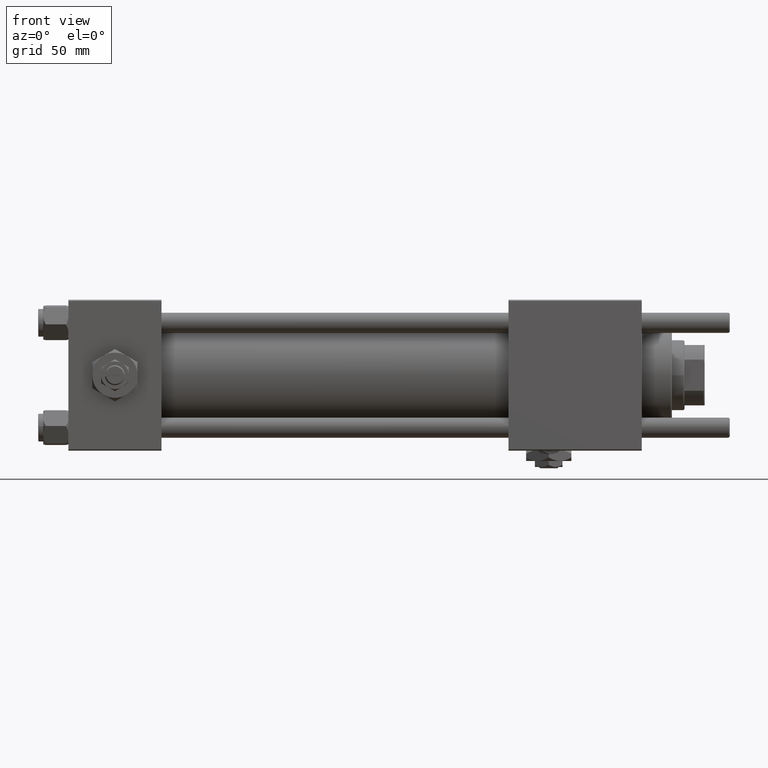
[diagram: clean part render]
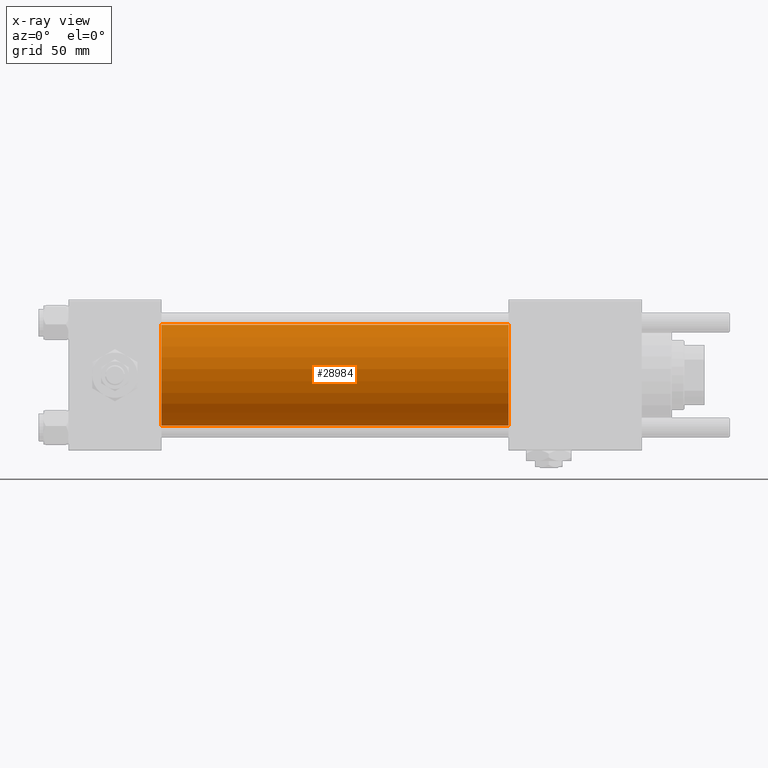
[diagram: x-ray — body ghosted, one internal face saturated and labeled with its STEP entity id]
A machine part, front view, then the same camera in x-ray: the body is ghosted and one INTERNAL B-rep face — a face not visible from any outside direction — is saturated and labeled: STEP entity #28984.
In plain terms, the highlighted cylindrical surface (partial cylindrical patch) has radius 20 mm, axis along (-1, -0, -0).
Its self-contained STEP definition (entity closure, byte-faithful):
#3 = DIRECTION ( 'NONE',  ( 1.000000000000000000, 0.000000000000000000, 0.000000000000000000 ) ) ;
#1179 = VERTEX_POINT ( 'NONE', #18407 ) ;
#1770 = DIRECTION ( 'NONE',  ( 0.000000000000000000, 0.000000000000000000, -1.000000000000000000 ) ) ;
#1987 = LINE ( 'NONE', #11234, #51168 ) ;
#2159 = CYLINDRICAL_SURFACE ( 'NONE', #21843, 20.00000000000000000 ) ;
#3428 = VERTEX_POINT ( 'NONE', #29216 ) ;
#5325 = EDGE_LOOP ( 'NONE', ( #20348, #6050, #7755, #23019 ) ) ;
#5484 = VERTEX_POINT ( 'NONE', #34004 ) ;
#6050 = ORIENTED_EDGE ( 'NONE', *, *, #36006, .T. ) ;
#7671 = CARTESIAN_POINT ( 'NONE',  ( 37.00000000000000000, -2.602085213965210642E-15, 20.00000000000000000 ) ) ;
#7755 = ORIENTED_EDGE ( 'NONE', *, *, #24812, .F. ) ;
#11234 = CARTESIAN_POINT ( 'NONE',  ( 175.0000000000000284, -2.602085213965210642E-15, 20.00000000000000000 ) ) ;
#13330 = LINE ( 'NONE', #41665, #45904 ) ;
#18407 = CARTESIAN_POINT ( 'NONE',  ( 175.0000000000000284, -1.527916156705042519E-16, -20.00000000000000000 ) ) ;
#20348 = ORIENTED_EDGE ( 'NONE', *, *, #55907, .T. ) ;
#21843 = AXIS2_PLACEMENT_3D ( 'NONE', #47227, #42762, #24857 ) ;
#23019 = ORIENTED_EDGE ( 'NONE', *, *, #51475, .F. ) ;
#24812 = EDGE_CURVE ( 'NONE', #46955, #3428, #25516, .T. ) ;
#24857 = DIRECTION ( 'NONE',  ( 0.000000000000000000, 0.000000000000000000, 1.000000000000000000 ) ) ;
#25516 = CIRCLE ( 'NONE', #30296, 20.00000000000000000 ) ;
#27508 = CIRCLE ( 'NONE', #57013, 20.00000000000000000 ) ;
#28984 = ADVANCED_FACE ( 'NONE', ( #51986 ), #2159, .F. ) ;
#29216 = CARTESIAN_POINT ( 'NONE',  ( 37.00000000000000000, -1.527916156705042519E-16, -20.00000000000000000 ) ) ;
#29452 = DIRECTION ( 'NONE',  ( -1.000000000000000000, -0.000000000000000000, -0.000000000000000000 ) ) ;
#30296 = AXIS2_PLACEMENT_3D ( 'NONE', #37599, #56098, #1770 ) ;
#31655 = CARTESIAN_POINT ( 'NONE',  ( 175.0000000000000284, -2.602085213965210642E-15, 0.000000000000000000 ) ) ;
#31832 = DIRECTION ( 'NONE',  ( -1.000000000000000000, -0.000000000000000000, -0.000000000000000000 ) ) ;
#34004 = CARTESIAN_POINT ( 'NONE',  ( 175.0000000000000284, -2.602085213965210642E-15, 20.00000000000000000 ) ) ;
#36006 = EDGE_CURVE ( 'NONE', #1179, #3428, #13330, .T. ) ;
#37599 = CARTESIAN_POINT ( 'NONE',  ( 37.00000000000000000, -2.602085213965210642E-15, 0.000000000000000000 ) ) ;
#41665 = CARTESIAN_POINT ( 'NONE',  ( 175.0000000000000284, -1.527916156705042519E-16, -20.00000000000000000 ) ) ;
#42762 = DIRECTION ( 'NONE',  ( -1.000000000000000000, -0.000000000000000000, -0.000000000000000000 ) ) ;
#45904 = VECTOR ( 'NONE', #31832, 1000.000000000000000 ) ;
#46955 = VERTEX_POINT ( 'NONE', #7671 ) ;
#47227 = CARTESIAN_POINT ( 'NONE',  ( 175.0000000000000284, -2.602085213965210642E-15, 0.000000000000000000 ) ) ;
#49260 = DIRECTION ( 'NONE',  ( 0.000000000000000000, 0.000000000000000000, -1.000000000000000000 ) ) ;
#51168 = VECTOR ( 'NONE', #29452, 1000.000000000000000 ) ;
#51475 = EDGE_CURVE ( 'NONE', #5484, #46955, #1987, .T. ) ;
#51986 = FACE_OUTER_BOUND ( 'NONE', #5325, .T. ) ;
#55907 = EDGE_CURVE ( 'NONE', #5484, #1179, #27508, .T. ) ;
#56098 = DIRECTION ( 'NONE',  ( 1.000000000000000000, 0.000000000000000000, 0.000000000000000000 ) ) ;
#57013 = AXIS2_PLACEMENT_3D ( 'NONE', #31655, #3, #49260 ) ;